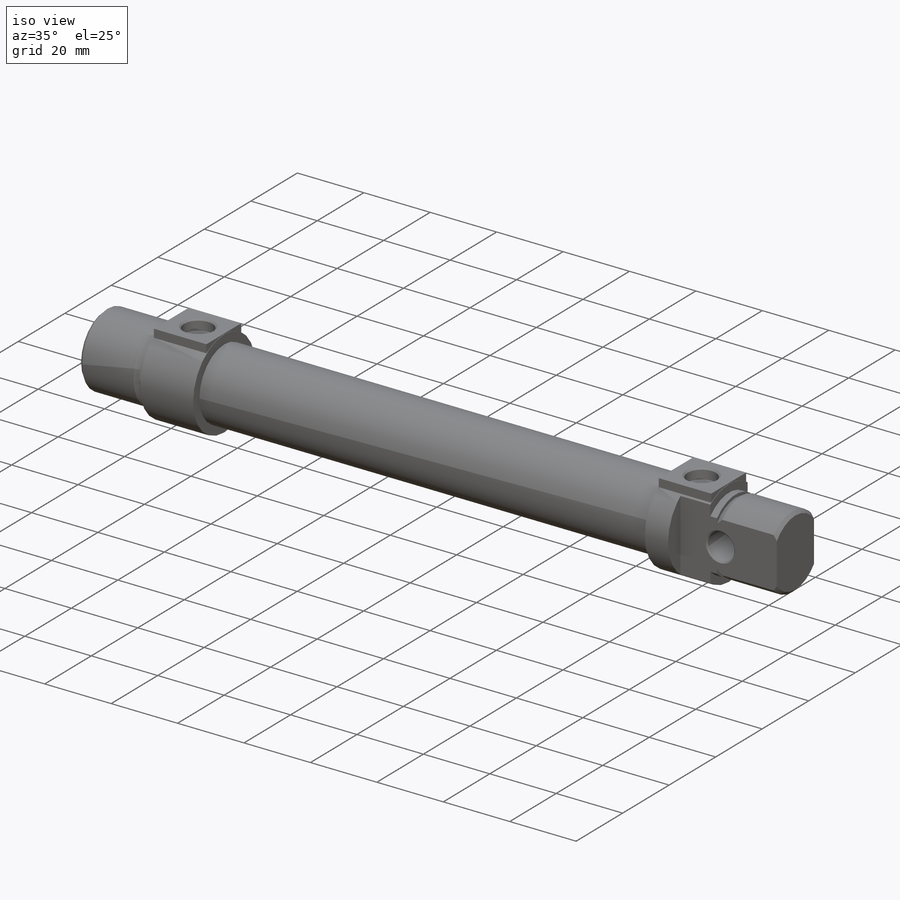
[diagram: iso view]
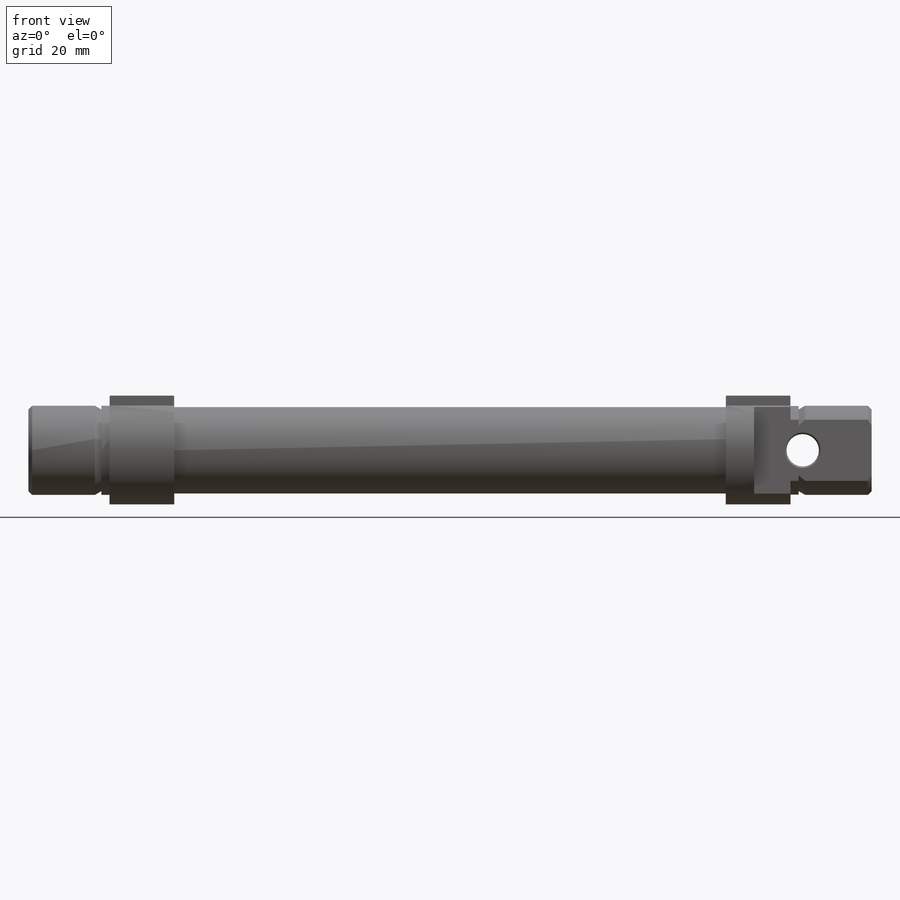
[diagram: front view]
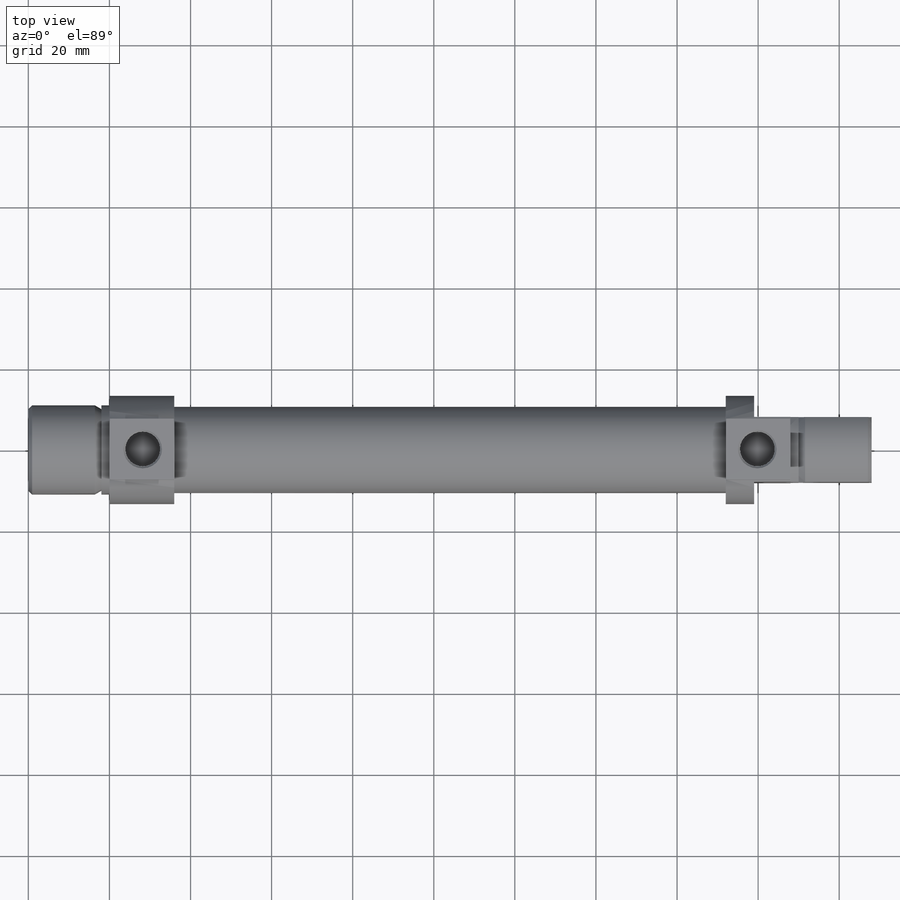
[diagram: top view]
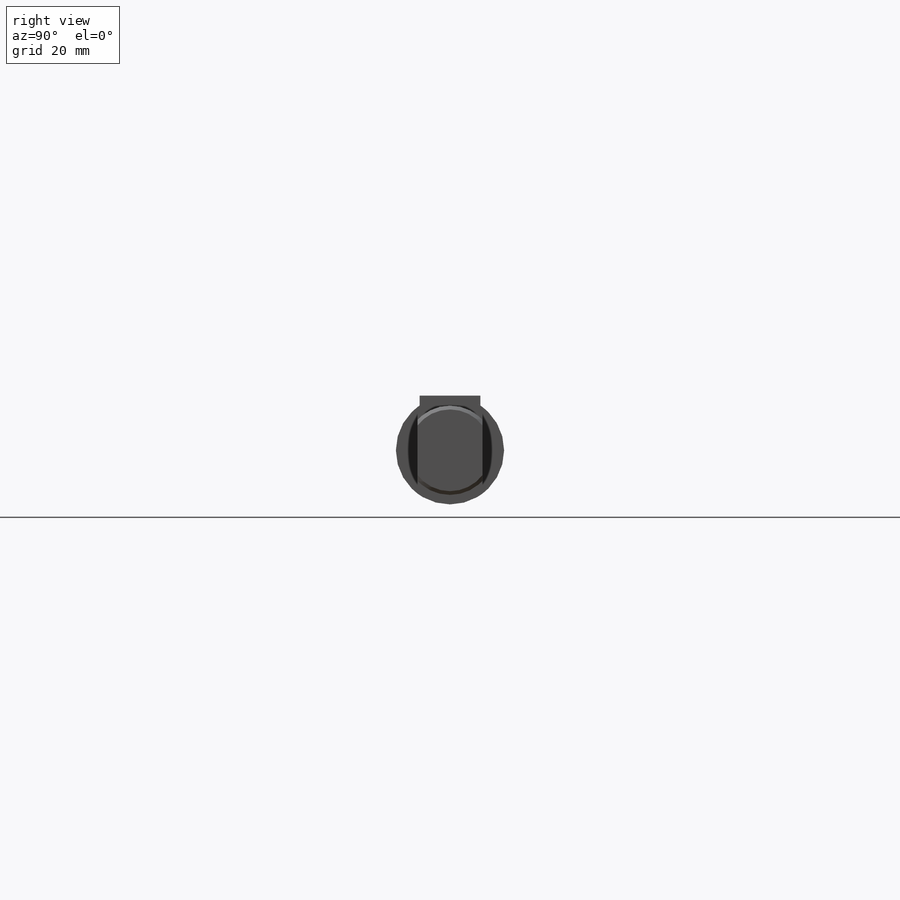
[diagram: right view]
SOLIDWORKS PART (.sldprt)
format: sldprt  version: not decoded by parser v0  size: 240,128 bytes
history: native  units: mm
features: plane x9, sketch x9, thread x4, cut_revolve x4, extrude x2, cut_extrude x2, material x1, revolve x1 (+16 scaffold rows collapsed)
feature tree (48):
  scaffold x16  (default folders/planes/origin — collapsed)
  material  "Material <not specified>"
  plane  "Plane1"
  sketch  "Sketch1"
  revolve  "Revolve1"  [1 undecoded]
  thread  "Cosmetic Thread1"  Diameter=18mm  [1 undecoded]
  thread  "Cosmetic Thread2"  Diameter=18mm  [1 undecoded]
  plane  "Plane2"
  sketch  "Sketch2"
  extrude  "Boss-Extrude1"  Depth=6.75mm
  plane  "Plane3"
  sketch  "Sketch3"
  extrude  "Boss-Extrude2"  Depth=6.75mm
  plane  "Plane4"
  sketch  "Sketch4"
  cut_revolve  "Cut-Revolve1"  [1 undecoded]
  thread  "Cosmetic Thread3"  Diameter=2.661667mm  [1 undecoded]
  plane  "Plane5"
  sketch  "Sketch5"
  cut_revolve  "Cut-Revolve2"  [1 undecoded]
  thread  "Cosmetic Thread4"  Diameter=2.661667mm  [1 undecoded]
  plane  "Plane6"
  sketch  "Sketch6"
  cut_extrude  "Cut-Extrude1"  Depth=27mm
  plane  "Plane7"
  sketch  "Sketch7"
  cut_revolve  "Cut-Revolve3"  Angle=360deg
  plane  "Plane8"
  sketch  "Sketch8"
  cut_extrude  "Cut-Extrude2"  Depth=160.9mm
  plane  "Plane9"
  sketch  "Sketch9"
  cut_revolve  "Cut-Revolve4"  Angle=360deg
decode coverage: 10 of 22 modeling features carry decoded parameters
note: 7 parameter values undecoded
summary: no parameter record found for 3 features
note: suppression state not decoded; provenance and decode notes live in map.json
